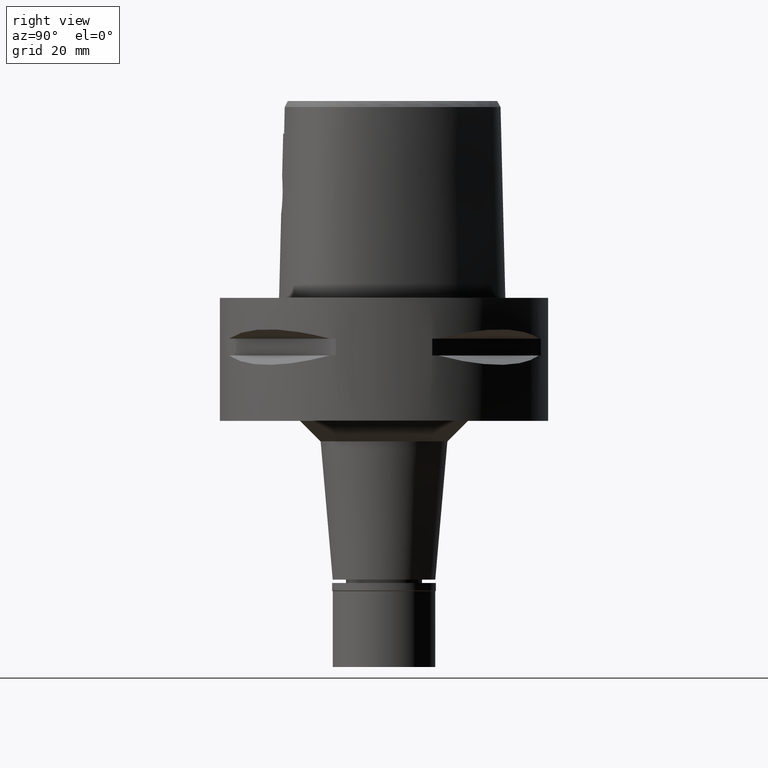
[diagram: clean part render]
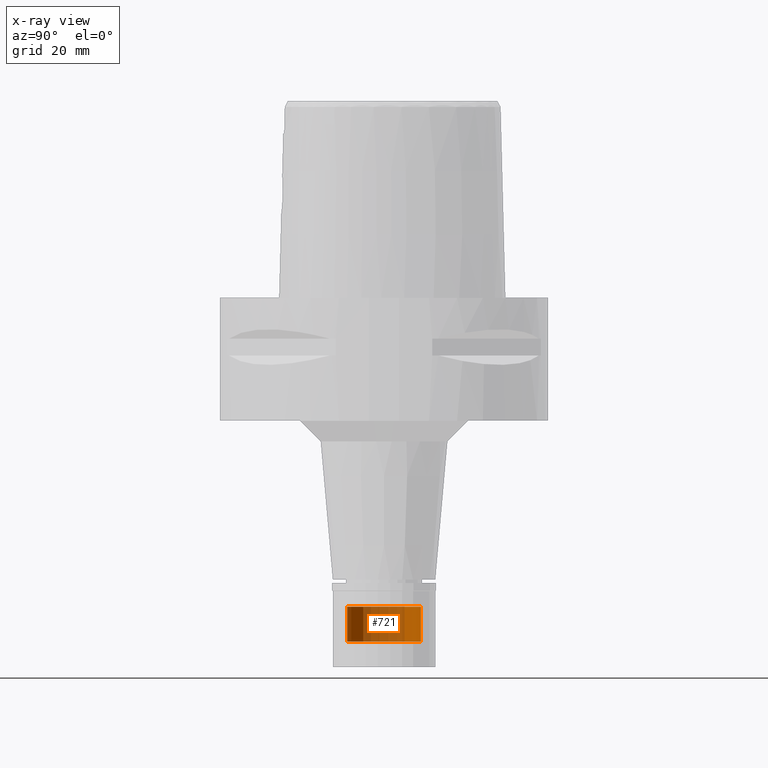
[diagram: x-ray — body ghosted, one internal face saturated and labeled with its STEP entity id]
A machine part, right view, then the same camera in x-ray: the body is ghosted and one INTERNAL B-rep face — a face not visible from any outside direction — is saturated and labeled: STEP entity #721.
In plain terms, the highlighted cylindrical surface (partial cylindrical patch) has radius 9 mm, axis along (0, 0, -1).
Its self-contained STEP definition (entity closure, byte-faithful):
#30 = CIRCLE ( 'NONE', #1133, 9.000000000000000000 ) ;
#85 = VECTOR ( 'NONE', #4610, 1000.000000000000000 ) ;
#540 = DIRECTION ( 'NONE',  ( 0.0000000000000000000, 0.0000000000000000000, -1.000000000000000000 ) ) ;
#573 = ORIENTED_EDGE ( 'NONE', *, *, #3890, .T. ) ;
#580 = CARTESIAN_POINT ( 'NONE',  ( 0.0000000000000000000, 9.000000000000000000, -75.30000000000001137 ) ) ;
#693 = CIRCLE ( 'NONE', #3612, 9.000000000000000000 ) ;
#721 = ADVANCED_FACE ( 'NONE', ( #3340 ), #2918, .T. ) ;
#821 = EDGE_LOOP ( 'NONE', ( #573, #3113, #856, #4183 ) ) ;
#856 = ORIENTED_EDGE ( 'NONE', *, *, #1395, .T. ) ;
#882 = EDGE_CURVE ( 'NONE', #3052, #2663, #3505, .T. ) ;
#1030 = DIRECTION ( 'NONE',  ( 0.0000000000000000000, -1.000000000000000000, 0.0000000000000000000 ) ) ;
#1133 = AXIS2_PLACEMENT_3D ( 'NONE', #3281, #2154, #1264 ) ;
#1264 = DIRECTION ( 'NONE',  ( 0.0000000000000000000, 1.000000000000000000, 0.0000000000000000000 ) ) ;
#1395 = EDGE_CURVE ( 'NONE', #4280, #3052, #693, .T. ) ;
#2128 = CARTESIAN_POINT ( 'NONE',  ( 0.0000000000000000000, 9.000000000000000000, -83.79999999999999716 ) ) ;
#2154 = DIRECTION ( 'NONE',  ( 0.0000000000000000000, 0.0000000000000000000, 1.000000000000000000 ) ) ;
#2663 = VERTEX_POINT ( 'NONE', #2128 ) ;
#2744 = DIRECTION ( 'NONE',  ( 0.0000000000000000000, 0.0000000000000000000, -1.000000000000000000 ) ) ;
#2880 = VERTEX_POINT ( 'NONE', #4802 ) ;
#2918 = CYLINDRICAL_SURFACE ( 'NONE', #3123, 9.000000000000000000 ) ;
#3052 = VERTEX_POINT ( 'NONE', #580 ) ;
#3113 = ORIENTED_EDGE ( 'NONE', *, *, #3634, .F. ) ;
#3123 = AXIS2_PLACEMENT_3D ( 'NONE', #3778, #540, #4913 ) ;
#3140 = VECTOR ( 'NONE', #2744, 1000.000000000000000 ) ;
#3185 = LINE ( 'NONE', #3910, #3140 ) ;
#3281 = CARTESIAN_POINT ( 'NONE',  ( 0.0000000000000000000, 1.275959500031999927E-14, -83.79999999999999716 ) ) ;
#3340 = FACE_OUTER_BOUND ( 'NONE', #821, .T. ) ;
#3469 = CARTESIAN_POINT ( 'NONE',  ( 0.0000000000000000000, 1.275959500031999927E-14, -75.30000000000001137 ) ) ;
#3505 = LINE ( 'NONE', #5056, #85 ) ;
#3612 = AXIS2_PLACEMENT_3D ( 'NONE', #3469, #4242, #1030 ) ;
#3634 = EDGE_CURVE ( 'NONE', #4280, #2880, #3185, .T. ) ;
#3778 = CARTESIAN_POINT ( 'NONE',  ( 0.0000000000000000000, 1.275959500031999927E-14, 4.190000000000000391 ) ) ;
#3850 = CARTESIAN_POINT ( 'NONE',  ( 0.0000000000000000000, -9.000000000000000000, -75.30000000000001137 ) ) ;
#3890 = EDGE_CURVE ( 'NONE', #2663, #2880, #30, .T. ) ;
#3910 = CARTESIAN_POINT ( 'NONE',  ( 0.0000000000000000000, -9.000000000000000000, -75.30000000000001137 ) ) ;
#4183 = ORIENTED_EDGE ( 'NONE', *, *, #882, .T. ) ;
#4242 = DIRECTION ( 'NONE',  ( 0.0000000000000000000, 0.0000000000000000000, -1.000000000000000000 ) ) ;
#4280 = VERTEX_POINT ( 'NONE', #3850 ) ;
#4610 = DIRECTION ( 'NONE',  ( 0.0000000000000000000, 0.0000000000000000000, -1.000000000000000000 ) ) ;
#4802 = CARTESIAN_POINT ( 'NONE',  ( 0.0000000000000000000, -9.000000000000000000, -83.79999999999999716 ) ) ;
#4913 = DIRECTION ( 'NONE',  ( 0.0000000000000000000, -1.000000000000000000, 0.0000000000000000000 ) ) ;
#5056 = CARTESIAN_POINT ( 'NONE',  ( 0.0000000000000000000, 9.000000000000000000, -75.30000000000001137 ) ) ;